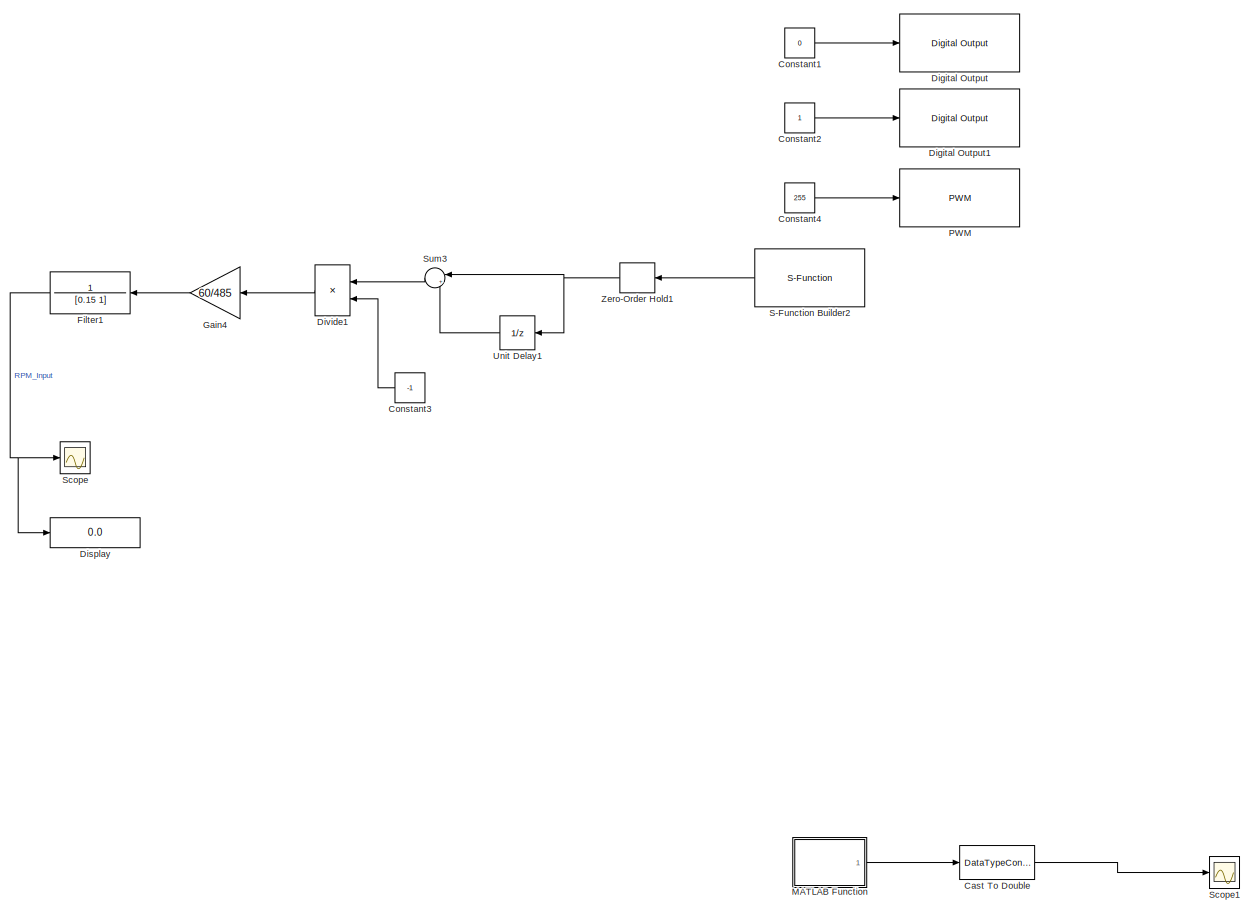
[diagram: root canvas - part 1/1, most of the canvas]
MODEL slx_341da057d51b
KIND model
CONFIG AbsTol = auto
CONFIG EnableMultiTasking = on
CONFIG FixedStep = auto
CONFIG MaxStep = auto
CONFIG MinStep = auto
CONFIG RelTol = 1e-3
CONFIG SampleTimeConstraint = Unconstrained
CONFIG SolverName = FixedStepAuto
CONFIG StartTime = 0.0
CONFIG StopTime = 100.0
BLOCK [DataTypeConversion] Cast To Double
  OutDataTypeStr = int8
  RndMeth = Floor
  SaturateOnIntegerOverflow = off
BLOCK [Constant] Constant1
  Value = 0
BLOCK [Constant] Constant2
BLOCK [Constant] Constant3
  SampleTime = -1
  Value = -1
  VectorParams1D = off
BLOCK [Constant] Constant4
  Value = 255
BLOCK [Reference] Digital Output  REF=arduinolib/Digital Output
  Ports = [1]
  SourceBlock = arduinolib/Digital Output
  SourceProductBaseCode = ARDUINO
  SourceType = Arduino Digital Output
BLOCK [Reference] Digital Output1  REF=arduinolib/Digital Output
  Ports = [1]
  SourceBlock = arduinolib/Digital Output
  SourceProductBaseCode = ARDUINO
  SourceType = Arduino Digital Output
BLOCK [Display] Display
  Decimation = 1
  Ports = [1]
BLOCK [Product] Divide1
  Inputs = */
  Ports = [2, 1]
BLOCK [TransferFcn] Filter1
  Denominator = [0.15 1]
  Numerator = 1
BLOCK [Gain] Gain4
  Gain = 60/485
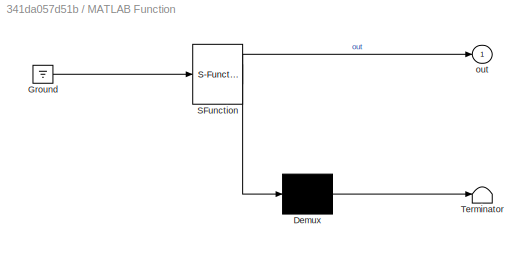
BLOCK [SubSystem] MATLAB Function
  ErrorFcn = Stateflow.Translate.translate
  PermitHierarchicalResolution = ExplicitOnly
  Ports = [0, 1]
  RequestExecContextInheritance = off
  SFBlockType = MATLAB Function
  TreatAsAtomicUnit = on
BLOCK [Demux] MATLAB Function/ Demux 
  Outputs = 1
  Ports = [1, 1]
BLOCK [Ground] MATLAB Function/ Ground 
BLOCK [S-Function] MATLAB Function/ SFunction 
  EnableBusSupport = on
  FunctionName = sf_sfun
  PortCounts = [1 2]
  Ports = [1, 2]
  SFcnIsStateOwnerBlock = off
  SFunctionDeploymentMode = off
  Tag = Stateflow S-Function 2
BLOCK [Terminator] MATLAB Function/ Terminator 
BLOCK [Outport] MATLAB Function/out
BLOCK [Reference] PWM  REF=arduinolib/PWM
  Ports = [1]
  SourceBlock = arduinolib/PWM
  SourceProductBaseCode = ARDUINO
  SourceType = Arduino PWM
BLOCK [S-Function] S-Function Builder2
  CopyFcn = set_param(gcbh,'LinkStatus','none')
  EnableBusSupport = off
  FunctionName = encoder
  InitFcn = try, set_param(gcb,'FunctionName','encoder'), end
  OpenFcn = sfunctionwizard(gcbh)
  Parameters = int8(0),int8(2),int8(3)
  Ports = [0, 1]
  PreSaveFcn = try, set_param(gcb,'FunctionName','encoder'), end
  SFcnIsStateOwnerBlock = off
  SFunctionDeploymentMode = off
  SFunctionModules = encoder_wrapper
BLOCK [Scope] Scope
  Floating = off
  NameLocation = left
  NumInputPorts = 1
  Ports = [1]
  ScopeSpecificationString = Simulink.scopes.TimeScopeBlockCfg('CurrentConfiguration', extmgr.ConfigurationSet(extmgr.Configuration('Core','General UI',true),extmgr.Configuration('Core','Source UI',true),extmgr.Configuration('Sources','WiredSimulink',true),extmgr.Configuration('Visuals','Time Domain',true,'SerializedDisplays',{struct('MinYLimReal','-136.0891','MaxYLimReal','97.61487','YLabelReal','','MinYLimMag',' 0.00000','M...<+1383ch>
BLOCK [Scope] Scope1
  Floating = off
  NameLocation = left
  NumInputPorts = 1
  Ports = [1]
  ScopeSpecificationString = Simulink.scopes.TimeScopeBlockCfg('CurrentConfiguration', extmgr.ConfigurationSet(extmgr.Configuration('Core','General UI',true),extmgr.Configuration('Core','Source UI',true),extmgr.Configuration('Sources','WiredSimulink',true,'DataLoggingVariableName','ScopeData1'),extmgr.Configuration('Visuals','Time Domain',true,'SerializedDisplays',{struct('MinYLimReal','-136.0891','MaxYLimReal','97.61487','YL...<+1413ch>
BLOCK [Sum] Sum3
  Inputs = |+-
  Ports = [2, 1]
BLOCK [UnitDelay] Unit Delay1
  HasFrameUpgradeWarning = on
  SampleTime = -1
BLOCK [ZeroOrderHold] Zero-Order Hold1
  SampleTime = -1
LINE Cast To Double:1 -> Scope1:1
LINE Constant1:1 -> Digital Output:1
LINE Constant2:1 -> Digital Output1:1
LINE Constant3:1 -> Divide1:2
LINE Constant4:1 -> PWM:1
LINE Divide1:1 -> Gain4:1
NET Filter1:1 -> Display:1, Scope:1
LINE Gain4:1 -> Filter1:1
LINE MATLAB Function:1 -> Cast To Double:1
LINE S-Function Builder2:1 -> Zero-Order Hold1:1
LINE Sum3:1 -> Divide1:1
LINE Unit Delay1:1 -> Sum3:2
NET Zero-Order Hold1:1 -> Sum3:1, Unit Delay1:1
note: NET lines group one-source signal fan-out (src -> all destinations, sorted); 1:1 wires keep LINE
CHART MATLAB Function states=1 transitions=1
  STATE_LABEL 'eML_blk_kernel()'
  STATE_LABEL "SCRIPT:\nfunction out = fcn()\nx = arduino('COM5','Due','Libraries','rotaryEncoder');\np = rotaryEncoder(x,'A0','A1',7);\ny = readSpeed(p);\nout = y;"
CHART  states=0 transitions=0
